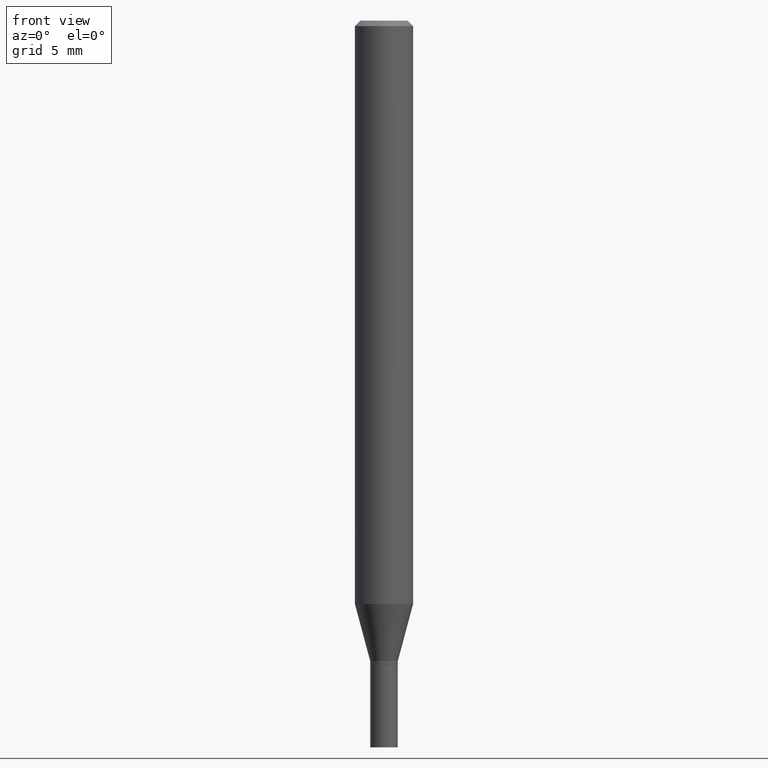
[diagram: clean part render]
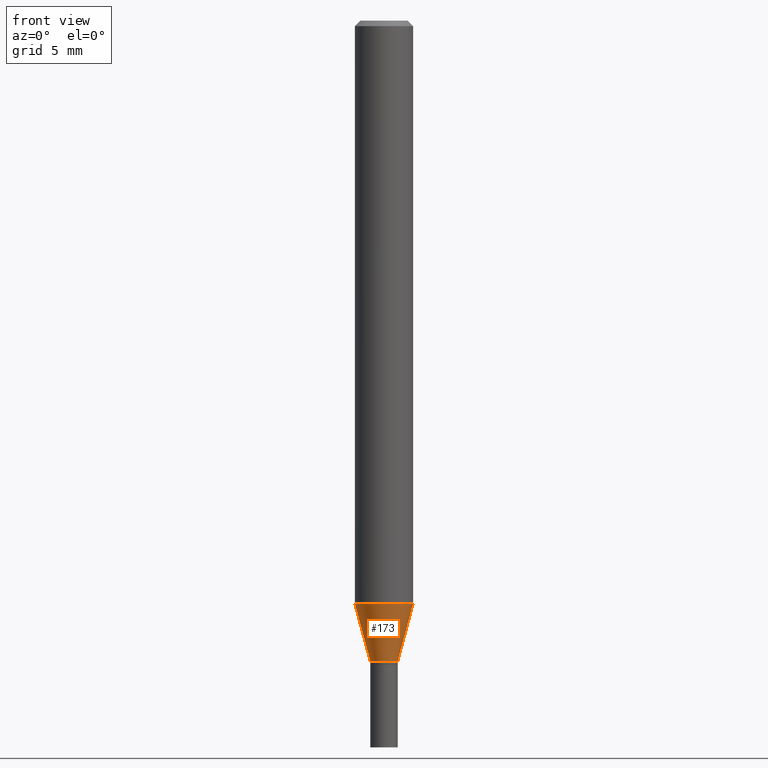
[diagram: same view with one face highlighted and labeled with its STEP entity id]
A machine part, front view. The second image highlights one B-rep face of the part: STEP entity #173.
In plain terms, the highlighted conical surface has half-angle 15 deg.
Its self-contained STEP definition (entity closure, byte-faithful):
#11 = CARTESIAN_POINT ( 'NONE',  ( -0.07875000000000000056, -4.957615527039885735E-15, -1.580179699107028268 ) ) ;
#13 = CONICAL_SURFACE ( 'NONE', #169, 0.03740000000000019698, 0.2617993877991502405 ) ;
#19 = VECTOR ( 'NONE', #201, 39.37007874015748143 ) ;
#20 = FACE_OUTER_BOUND ( 'NONE', #383, .T. ) ;
#31 = DIRECTION ( 'NONE',  ( 1.000000000000000000, -6.982962677686261977E-15, 0.000000000000000000 ) ) ;
#64 = ORIENTED_EDGE ( 'NONE', *, *, #374, .F. ) ;
#94 = VERTEX_POINT ( 'NONE', #11 ) ;
#100 = CARTESIAN_POINT ( 'NONE',  ( 0.07875000000000000056, -6.067076242318758671E-15, -1.580179699107028268 ) ) ;
#101 = VERTEX_POINT ( 'NONE', #145 ) ;
#108 = CARTESIAN_POINT ( 'NONE',  ( 0.03740000000000019698, -6.317137186368903672E-15, -1.734499999999999931 ) ) ;
#109 = EDGE_CURVE ( 'NONE', #101, #357, #324, .T. ) ;
#124 = DIRECTION ( 'NONE',  ( 1.000000000000000000, -6.982962677686265133E-15, 0.000000000000000000 ) ) ;
#133 = ORIENTED_EDGE ( 'NONE', *, *, #258, .T. ) ;
#145 = CARTESIAN_POINT ( 'NONE',  ( 0.03740000000000019698, -6.317137186368903672E-15, -1.734499999999999931 ) ) ;
#153 = AXIS2_PLACEMENT_3D ( 'NONE', #301, #300, #373 ) ;
#169 = AXIS2_PLACEMENT_3D ( 'NONE', #306, #378, #124 ) ;
#173 = ADVANCED_FACE ( 'NONE', ( #20 ), #13, .T. ) ;
#189 = CIRCLE ( 'NONE', #325, 0.07875000000000000056 ) ;
#201 = DIRECTION ( 'NONE',  ( -0.2588190451025215166, 5.211531920934551042E-15, 0.9659258262890679791 ) ) ;
#231 = CARTESIAN_POINT ( 'NONE',  ( -0.03740000000000019698, -5.373923463044521625E-15, -1.734499999999999931 ) ) ;
#233 = LINE ( 'NONE', #459, #19 ) ;
#245 = VECTOR ( 'NONE', #291, 39.37007874015748143 ) ;
#251 = ORIENTED_EDGE ( 'NONE', *, *, #109, .T. ) ;
#258 = EDGE_CURVE ( 'NONE', #320, #101, #279, .T. ) ;
#279 = CIRCLE ( 'NONE', #153, 0.03740000000000019698 ) ;
#283 = DIRECTION ( 'NONE',  ( -2.445468806185136597E-29, 3.491481338843145583E-15, 1.000000000000000000 ) ) ;
#291 = DIRECTION ( 'NONE',  ( 0.2588190451025215166, 1.565188264969620784E-15, 0.9659258262890679791 ) ) ;
#300 = DIRECTION ( 'NONE',  ( -2.445468806185136597E-29, 3.491481338843145583E-15, 1.000000000000000000 ) ) ;
#301 = CARTESIAN_POINT ( 'NONE',  ( 4.241665644328119485E-29, -6.055974382223435694E-15, -1.734499999999999931 ) ) ;
#305 = EDGE_CURVE ( 'NONE', #94, #357, #189, .T. ) ;
#306 = CARTESIAN_POINT ( 'NONE',  ( 4.241665644328119485E-29, -6.055974382223435694E-15, -1.734499999999999931 ) ) ;
#314 = ORIENTED_EDGE ( 'NONE', *, *, #305, .F. ) ;
#320 = VERTEX_POINT ( 'NONE', #231 ) ;
#324 = LINE ( 'NONE', #108, #245 ) ;
#325 = AXIS2_PLACEMENT_3D ( 'NONE', #414, #283, #31 ) ;
#357 = VERTEX_POINT ( 'NONE', #100 ) ;
#373 = DIRECTION ( 'NONE',  ( 1.000000000000000000, -6.982962677686265133E-15, 0.000000000000000000 ) ) ;
#374 = EDGE_CURVE ( 'NONE', #320, #94, #233, .T. ) ;
#378 = DIRECTION ( 'NONE',  ( -2.445468806185136597E-29, 3.491481338843145583E-15, 1.000000000000000000 ) ) ;
#383 = EDGE_LOOP ( 'NONE', ( #64, #133, #251, #314 ) ) ;
#414 = CARTESIAN_POINT ( 'NONE',  ( 3.864280162333252269E-29, -5.517167931450965325E-15, -1.580179699107028268 ) ) ;
#459 = CARTESIAN_POINT ( 'NONE',  ( -0.03740000000000019698, -5.790231399049156726E-15, -1.734499999999999931 ) ) ;